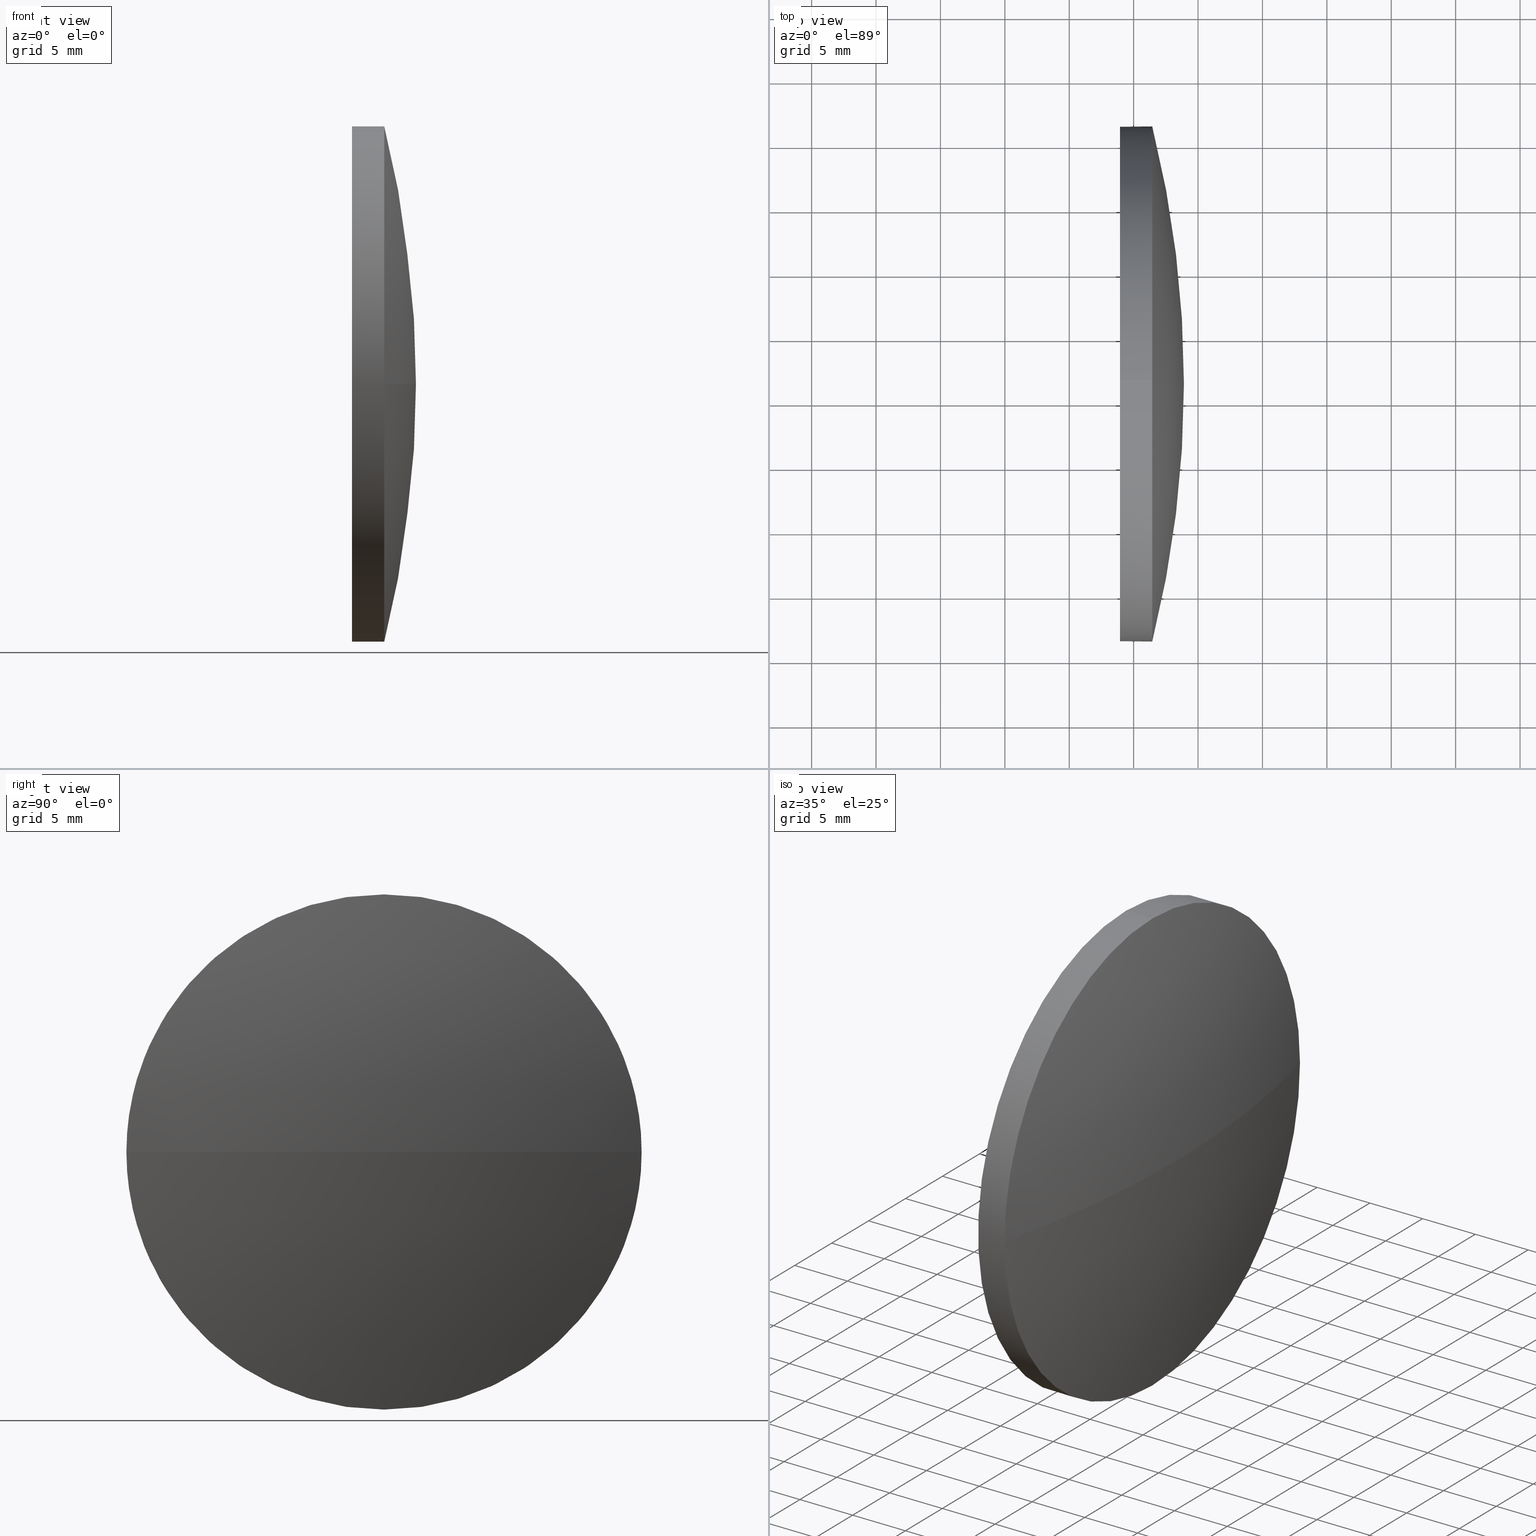
[diagram: canonical four-view strip — front | top / right | iso, engineering-drawing reading convention]
A machine part, canonical four-view strip (front | top / right | iso — engineering-drawing reading convention). The complete STEP part file that produces these views, byte-faithful:
ISO-10303-21;
HEADER;
FILE_DESCRIPTION (( 'STEP AP214' ),
    '1' );
FILE_NAME ('100146.STEP',
    '2019-05-31T03:03:50',
    ( '' ),
    ( '' ),
    'SwSTEP 2.0',
    'SolidWorks 2016',
    '' );
FILE_SCHEMA (( 'AUTOMOTIVE_DESIGN' ));
ENDSEC;

DATA;
#1 = DIRECTION ( 'NONE',  ( 0.0000000000000000000, 0.0000000000000000000, 1.000000000000000000 ) ) ;
#2 = VERTEX_POINT ( 'NONE', #88 ) ;
#3 = EDGE_CURVE ( 'NONE', #113, #154, #10, .T. ) ;
#4 = DIRECTION ( 'NONE',  ( 0.0000000000000000000, 0.0000000000000000000, -1.000000000000000000 ) ) ;
#5 = MANIFOLD_SOLID_BREP ( '��ת1', #33 ) ;
#6 = DIRECTION ( 'NONE',  ( -0.0000000000000000000, 0.0000000000000000000, 1.000000000000000000 ) ) ;
#7 = AXIS2_PLACEMENT_3D ( 'NONE', #15, #17, #92 ) ;
#8 = EDGE_CURVE ( 'NONE', #2, #154, #156, .T. ) ;
#9 = APPLICATION_PROTOCOL_DEFINITION ( 'draft international standard', 'automotive_design', 1998, #81 ) ;
#10 = CIRCLE ( 'NONE', #125, 20.00000000000000400 ) ;
#11 = SURFACE_SIDE_STYLE ('',( #121 ) ) ;
#12 = PRODUCT_RELATED_PRODUCT_CATEGORY ( 'part', '', ( #80 ) ) ;
#13 = ORIENTED_EDGE ( 'NONE', *, *, #8, .F. ) ;
#14 = SURFACE_SIDE_STYLE ('',( #90 ) ) ;
#15 = CARTESIAN_POINT ( 'NONE',  ( 644.2502178065157100, 6.345979496323138800, 0.0000000000000000000 ) ) ;
#16 = VECTOR ( 'NONE', #131, 1000.000000000000000 ) ;
#17 = DIRECTION ( 'NONE',  ( -1.000000000000000000, -0.0000000000000000000, -0.0000000000000000000 ) ) ;
#18 = DIRECTION ( 'NONE',  ( -1.000000000000000000, -0.0000000000000000000, -0.0000000000000000000 ) ) ;
#19 = EDGE_CURVE ( 'NONE', #103, #24, #116, .T. ) ;
#20 = FILL_AREA_STYLE_COLOUR ( '', #157 ) ;
#21 = ORIENTED_EDGE ( 'NONE', *, *, #44, .T. ) ;
#22 = DIRECTION ( 'NONE',  ( -1.000000000000000000, -0.0000000000000000000, -0.0000000000000000000 ) ) ;
#23 = ADVANCED_FACE ( 'NONE', ( #62 ), #67, .T. ) ;
#24 = VERTEX_POINT ( 'NONE', #118 ) ;
#25 = APPLICATION_CONTEXT ( 'automotive_design' ) ;
#26 = CIRCLE ( 'NONE', #179, 82.53081300813025200 ) ;
#27 = ORIENTED_EDGE ( 'NONE', *, *, #73, .T. ) ;
#28 = CIRCLE ( 'NONE', #94, 20.00000000000000400 ) ;
#29 = SURFACE_STYLE_USAGE ( .BOTH. , #14 ) ;
#30 = CARTESIAN_POINT ( 'NONE',  ( 651.4447609870927600, -13.65402050367691300, -2.449293598294710900E-015 ) ) ;
#31 = UNCERTAINTY_MEASURE_WITH_UNIT (LENGTH_MEASURE( 1.000000000000000100E-005 ), #123, 'distance_accuracy_value', 'NONE');
#32 = DIRECTION ( 'NONE',  ( 1.000000000000000000, 0.0000000000000000000, 0.0000000000000000000 ) ) ;
#33 = CLOSED_SHELL ( 'NONE', ( #167, #162, #38, #23, #126 ) ) ;
#34 = DIRECTION ( 'NONE',  ( 0.0000000000000000000, 0.0000000000000000000, 1.000000000000000000 ) ) ;
#35 =( LENGTH_UNIT ( ) NAMED_UNIT ( * ) SI_UNIT ( .MILLI., .METRE. ) );
#36 = ORIENTED_EDGE ( 'NONE', *, *, #73, .F. ) ;
#37 = EDGE_LOOP ( 'NONE', ( #21, #181 ) ) ;
#38 = ADVANCED_FACE ( 'NONE', ( #39 ), #165, .T. ) ;
#39 = FACE_OUTER_BOUND ( 'NONE', #110, .T. ) ;
#40 = AXIS2_PLACEMENT_3D ( 'NONE', #152, #186, #105 ) ;
#41 = CARTESIAN_POINT ( 'NONE',  ( 644.2502178065157100, 6.345979496323141500, -20.00000000000000400 ) ) ;
#42 = EDGE_CURVE ( 'NONE', #113, #124, #145, .T. ) ;
#43 = DIRECTION ( 'NONE',  ( 0.0000000000000000000, 0.0000000000000000000, 1.000000000000000000 ) ) ;
#44 = EDGE_CURVE ( 'NONE', #124, #24, #48, .T. ) ;
#45 = ORIENTED_EDGE ( 'NONE', *, *, #112, .F. ) ;
#46 = DIRECTION ( 'NONE',  ( 0.0000000000000000000, 1.000000000000000000, 0.0000000000000000000 ) ) ;
#47 =( GEOMETRIC_REPRESENTATION_CONTEXT ( 3 ) GLOBAL_UNCERTAINTY_ASSIGNED_CONTEXT ( ( #144 ) ) GLOBAL_UNIT_ASSIGNED_CONTEXT ( ( #35, #66, #109 ) ) REPRESENTATION_CONTEXT ( 'NONE', 'WORKASPACE' ) );
#48 = CIRCLE ( 'NONE', #141, 20.00000000000000400 ) ;
#49 = ORIENTED_EDGE ( 'NONE', *, *, #52, .F. ) ;
#50 = PRESENTATION_STYLE_ASSIGNMENT (( #29 ) ) ;
#51 = ORIENTED_EDGE ( 'NONE', *, *, #44, .F. ) ;
#52 = EDGE_CURVE ( 'NONE', #142, #113, #28, .T. ) ;
#53 = CARTESIAN_POINT ( 'NONE',  ( 571.3739479789625200, 6.345979496323131700, 0.0000000000000000000 ) ) ;
#54 = CYLINDRICAL_SURFACE ( 'NONE', #130, 20.00000000000000400 ) ;
#55 = AXIS2_PLACEMENT_3D ( 'NONE', #136, #96, #180 ) ;
#56 = FILL_AREA_STYLE ('',( #100 ) ) ;
#57 = ORIENTED_EDGE ( 'NONE', *, *, #112, .T. ) ;
#58 = DIRECTION ( 'NONE',  ( -1.000000000000000000, -0.0000000000000000000, -0.0000000000000000000 ) ) ;
#59 = CARTESIAN_POINT ( 'NONE',  ( 571.3739479789625200, 6.345979496323131700, 0.0000000000000000000 ) ) ;
#60 = AXIS2_PLACEMENT_3D ( 'NONE', #151, #174, #46 ) ;
#61 = CARTESIAN_POINT ( 'NONE',  ( 644.2502178065157100, 6.345979496323138800, 0.0000000000000000000 ) ) ;
#62 = FACE_OUTER_BOUND ( 'NONE', #86, .T. ) ;
#63 = CARTESIAN_POINT ( 'NONE',  ( 651.4447609870927600, 6.345979496323138800, 20.00000000000000400 ) ) ;
#64 = ORIENTED_EDGE ( 'NONE', *, *, #19, .F. ) ;
#65 = EDGE_CURVE ( 'NONE', #2, #142, #26, .T. ) ;
#66 =( NAMED_UNIT ( * ) PLANE_ANGLE_UNIT ( ) SI_UNIT ( $, .RADIAN. ) );
#67 = CYLINDRICAL_SURFACE ( 'NONE', #7, 20.00000000000000400 ) ;
#68 = AXIS2_PLACEMENT_3D ( 'NONE', #175, #22, #34 ) ;
#69 = EDGE_LOOP ( 'NONE', ( #27, #129, #51, #76, #170 ) ) ;
#70 = STYLED_ITEM ( 'NONE', ( #85 ), #111 ) ;
#71 = ORIENTED_EDGE ( 'NONE', *, *, #104, .F. ) ;
#72 =( NAMED_UNIT ( * ) PLANE_ANGLE_UNIT ( ) SI_UNIT ( $, .RADIAN. ) );
#73 = EDGE_CURVE ( 'NONE', #154, #103, #97, .T. ) ;
#74 = ORIENTED_EDGE ( 'NONE', *, *, #42, .T. ) ;
#75 = CARTESIAN_POINT ( 'NONE',  ( 651.4447609870927600, 6.345979496323141500, -20.00000000000000400 ) ) ;
#76 = ORIENTED_EDGE ( 'NONE', *, *, #42, .F. ) ;
#77 = DIRECTION ( 'NONE',  ( -1.000000000000000000, -0.0000000000000000000, -0.0000000000000000000 ) ) ;
#78 = AXIS2_PLACEMENT_3D ( 'NONE', #176, #32, #4 ) ;
#79 = CIRCLE ( 'NONE', #98, 20.00000000000000400 ) ;
#80 = PRODUCT ( '100146', '100146', '', ( #108 ) ) ;
#81 = APPLICATION_CONTEXT ( 'automotive_design' ) ;
#82 = COLOUR_RGB ( '',1.000000000000000000, 1.000000000000000000, 1.000000000000000000 ) ;
#83 =( NAMED_UNIT ( * ) SI_UNIT ( $, .STERADIAN. ) SOLID_ANGLE_UNIT ( ) );
#84 = PRESENTATION_LAYER_ASSIGNMENT (  '', '', ( #70 ) ) ;
#85 = PRESENTATION_STYLE_ASSIGNMENT (( #153 ) ) ;
#86 = EDGE_LOOP ( 'NONE', ( #64, #57, #135, #74, #71 ) ) ;
#87 = MECHANICAL_DESIGN_GEOMETRIC_PRESENTATION_REPRESENTATION (  '', ( #70 ), #178 ) ;
#88 = CARTESIAN_POINT ( 'NONE',  ( 653.9047609870928000, 6.345979496323137100, 0.0000000000000000000 ) ) ;
#89 = DIRECTION ( 'NONE',  ( 0.0000000000000000000, 1.000000000000000000, 0.0000000000000000000 ) ) ;
#90 = SURFACE_STYLE_FILL_AREA ( #56 ) ;
#91 = DIRECTION ( 'NONE',  ( -0.0000000000000000000, 0.0000000000000000000, -1.000000000000000000 ) ) ;
#92 = DIRECTION ( 'NONE',  ( 0.0000000000000000000, 0.0000000000000000000, 1.000000000000000000 ) ) ;
#93 = FACE_OUTER_BOUND ( 'NONE', #182, .T. ) ;
#94 = AXIS2_PLACEMENT_3D ( 'NONE', #149, #139, #160 ) ;
#95 = MECHANICAL_DESIGN_GEOMETRIC_PRESENTATION_REPRESENTATION (  '', ( #137 ), #122 ) ;
#96 = DIRECTION ( 'NONE',  ( 0.0000000000000000000, 0.0000000000000000000, 1.000000000000000000 ) ) ;
#97 = CIRCLE ( 'NONE', #40, 20.00000000000000400 ) ;
#98 = AXIS2_PLACEMENT_3D ( 'NONE', #117, #18, #43 ) ;
#99 = SPHERICAL_SURFACE ( 'NONE', #60, 82.53081300813025200 ) ;
#100 = FILL_AREA_STYLE_COLOUR ( '', #82 ) ;
#101 = DIRECTION ( 'NONE',  ( 0.0000000000000000000, 0.0000000000000000000, 1.000000000000000000 ) ) ;
#102 = DIRECTION ( 'NONE',  ( 0.0000000000000000000, 1.000000000000000000, 1.224646799147353200E-016 ) ) ;
#103 = VERTEX_POINT ( 'NONE', #75 ) ;
#104 = EDGE_CURVE ( 'NONE', #24, #124, #140, .T. ) ;
#105 = DIRECTION ( 'NONE',  ( 0.0000000000000000000, 0.0000000000000000000, 1.000000000000000000 ) ) ;
#106 = CARTESIAN_POINT ( 'NONE',  ( 648.9447609870927600, 6.345979496323138800, 20.00000000000000400 ) ) ;
#107 = ORIENTED_EDGE ( 'NONE', *, *, #8, .T. ) ;
#108 = PRODUCT_CONTEXT ( 'NONE', #81, 'mechanical' ) ;
#109 =( NAMED_UNIT ( * ) SI_UNIT ( $, .STERADIAN. ) SOLID_ANGLE_UNIT ( ) );
#110 = EDGE_LOOP ( 'NONE', ( #147, #107, #161, #49 ) ) ;
#111 = ADVANCED_BREP_SHAPE_REPRESENTATION ( '100146', ( #5, #55 ), #47 ) ;
#112 = EDGE_CURVE ( 'NONE', #103, #142, #79, .T. ) ;
#113 = VERTEX_POINT ( 'NONE', #63 ) ;
#114 =( NAMED_UNIT ( * ) SI_UNIT ( $, .STERADIAN. ) SOLID_ANGLE_UNIT ( ) );
#115 = DIRECTION ( 'NONE',  ( -1.000000000000000000, -0.0000000000000000000, -0.0000000000000000000 ) ) ;
#116 = LINE ( 'NONE', #41, #16 ) ;
#117 = CARTESIAN_POINT ( 'NONE',  ( 651.4447609870927600, 6.345979496323138800, 0.0000000000000000000 ) ) ;
#118 = CARTESIAN_POINT ( 'NONE',  ( 648.9447609870927600, 6.345979496323141500, -20.00000000000000400 ) ) ;
#119 = PRODUCT_DEFINITION_FORMATION_WITH_SPECIFIED_SOURCE ( '�κ�', '', #80, .NOT_KNOWN. ) ;
#120 = CARTESIAN_POINT ( 'NONE',  ( 571.3739479789625200, 6.345979496323131700, 0.0000000000000000000 ) ) ;
#121 = SURFACE_STYLE_FILL_AREA ( #127 ) ;
#122 =( GEOMETRIC_REPRESENTATION_CONTEXT ( 3 ) GLOBAL_UNCERTAINTY_ASSIGNED_CONTEXT ( ( #148 ) ) GLOBAL_UNIT_ASSIGNED_CONTEXT ( ( #158, #72, #114 ) ) REPRESENTATION_CONTEXT ( 'NONE', 'WORKASPACE' ) );
#123 =( LENGTH_UNIT ( ) NAMED_UNIT ( * ) SI_UNIT ( .MILLI., .METRE. ) );
#124 = VERTEX_POINT ( 'NONE', #106 ) ;
#125 = AXIS2_PLACEMENT_3D ( 'NONE', #172, #115, #101 ) ;
#126 = ADVANCED_FACE ( 'NONE', ( #171 ), #134, .F. ) ;
#127 = FILL_AREA_STYLE ('',( #20 ) ) ;
#128 = PRESENTATION_LAYER_ASSIGNMENT (  '', '', ( #137 ) ) ;
#129 = ORIENTED_EDGE ( 'NONE', *, *, #19, .T. ) ;
#130 = AXIS2_PLACEMENT_3D ( 'NONE', #61, #77, #177 ) ;
#131 = DIRECTION ( 'NONE',  ( -1.000000000000000000, -0.0000000000000000000, -0.0000000000000000000 ) ) ;
#132 = FACE_OUTER_BOUND ( 'NONE', #69, .T. ) ;
#133 = PRODUCT_DEFINITION_SHAPE ( 'NONE', 'NONE',  #168 ) ;
#134 = PLANE ( 'NONE',  #78 ) ;
#135 = ORIENTED_EDGE ( 'NONE', *, *, #52, .T. ) ;
#136 = CARTESIAN_POINT ( 'NONE',  ( 0.0000000000000000000, 0.0000000000000000000, 0.0000000000000000000 ) ) ;
#137 = STYLED_ITEM ( 'NONE', ( #50 ), #5 ) ;
#138 = DIRECTION ( 'NONE',  ( 0.0000000000000000000, 1.224646799147353200E-016, -1.000000000000000000 ) ) ;
#139 = DIRECTION ( 'NONE',  ( -1.000000000000000000, -0.0000000000000000000, -0.0000000000000000000 ) ) ;
#140 = CIRCLE ( 'NONE', #68, 20.00000000000000400 ) ;
#141 = AXIS2_PLACEMENT_3D ( 'NONE', #150, #58, #1 ) ;
#142 = VERTEX_POINT ( 'NONE', #30 ) ;
#143 = APPLICATION_PROTOCOL_DEFINITION ( 'draft international standard', 'automotive_design', 1998, #25 ) ;
#144 = UNCERTAINTY_MEASURE_WITH_UNIT (LENGTH_MEASURE( 1.000000000000000100E-005 ), #35, 'distance_accuracy_value', 'NONE');
#145 = LINE ( 'NONE', #173, #169 ) ;
#146 = AXIS2_PLACEMENT_3D ( 'NONE', #53, #6, #163 ) ;
#147 = ORIENTED_EDGE ( 'NONE', *, *, #65, .F. ) ;
#148 = UNCERTAINTY_MEASURE_WITH_UNIT (LENGTH_MEASURE( 1.000000000000000100E-005 ), #158, 'distance_accuracy_value', 'NONE');
#149 = CARTESIAN_POINT ( 'NONE',  ( 651.4447609870927600, 6.345979496323138800, 0.0000000000000000000 ) ) ;
#150 = CARTESIAN_POINT ( 'NONE',  ( 648.9447609870927600, 6.345979496323138800, 0.0000000000000000000 ) ) ;
#151 = CARTESIAN_POINT ( 'NONE',  ( 571.3739479789625200, 6.345979496323131700, 0.0000000000000000000 ) ) ;
#152 = CARTESIAN_POINT ( 'NONE',  ( 651.4447609870927600, 6.345979496323138800, 0.0000000000000000000 ) ) ;
#153 = SURFACE_STYLE_USAGE ( .BOTH. , #11 ) ;
#154 = VERTEX_POINT ( 'NONE', #159 ) ;
#155 = AXIS2_PLACEMENT_3D ( 'NONE', #59, #91, #89 ) ;
#156 = CIRCLE ( 'NONE', #146, 82.53081300813025200 ) ;
#157 = COLOUR_RGB ( '',1.000000000000000000, 1.000000000000000000, 1.000000000000000000 ) ;
#158 =( LENGTH_UNIT ( ) NAMED_UNIT ( * ) SI_UNIT ( .MILLI., .METRE. ) );
#159 = CARTESIAN_POINT ( 'NONE',  ( 651.4447609870927600, 26.34597949632318100, 0.0000000000000000000 ) ) ;
#160 = DIRECTION ( 'NONE',  ( 0.0000000000000000000, 0.0000000000000000000, 1.000000000000000000 ) ) ;
#161 = ORIENTED_EDGE ( 'NONE', *, *, #3, .F. ) ;
#162 = ADVANCED_FACE ( 'NONE', ( #93 ), #99, .T. ) ;
#163 = DIRECTION ( 'NONE',  ( 1.000000000000000000, 0.0000000000000000000, 0.0000000000000000000 ) ) ;
#164 = DIRECTION ( 'NONE',  ( -1.000000000000000000, -0.0000000000000000000, -0.0000000000000000000 ) ) ;
#165 = SPHERICAL_SURFACE ( 'NONE', #155, 82.53081300813025200 ) ;
#166 =( NAMED_UNIT ( * ) PLANE_ANGLE_UNIT ( ) SI_UNIT ( $, .RADIAN. ) );
#167 = ADVANCED_FACE ( 'NONE', ( #132 ), #54, .T. ) ;
#168 = PRODUCT_DEFINITION ( 'δ֪', '', #119, #185 ) ;
#169 = VECTOR ( 'NONE', #164, 1000.000000000000000 ) ;
#170 = ORIENTED_EDGE ( 'NONE', *, *, #3, .T. ) ;
#171 = FACE_OUTER_BOUND ( 'NONE', #37, .T. ) ;
#172 = CARTESIAN_POINT ( 'NONE',  ( 651.4447609870927600, 6.345979496323138800, 0.0000000000000000000 ) ) ;
#173 = CARTESIAN_POINT ( 'NONE',  ( 644.2502178065157100, 6.345979496323138800, 20.00000000000000400 ) ) ;
#174 = DIRECTION ( 'NONE',  ( -0.0000000000000000000, 0.0000000000000000000, -1.000000000000000000 ) ) ;
#175 = CARTESIAN_POINT ( 'NONE',  ( 648.9447609870927600, 6.345979496323138800, 0.0000000000000000000 ) ) ;
#176 = CARTESIAN_POINT ( 'NONE',  ( 648.9447609870927600, 6.345979496323138800, 0.0000000000000000000 ) ) ;
#177 = DIRECTION ( 'NONE',  ( 0.0000000000000000000, 0.0000000000000000000, 1.000000000000000000 ) ) ;
#178 =( GEOMETRIC_REPRESENTATION_CONTEXT ( 3 ) GLOBAL_UNCERTAINTY_ASSIGNED_CONTEXT ( ( #31 ) ) GLOBAL_UNIT_ASSIGNED_CONTEXT ( ( #123, #166, #83 ) ) REPRESENTATION_CONTEXT ( 'NONE', 'WORKASPACE' ) );
#179 = AXIS2_PLACEMENT_3D ( 'NONE', #120, #138, #102 ) ;
#180 = DIRECTION ( 'NONE',  ( 1.000000000000000000, 0.0000000000000000000, 0.0000000000000000000 ) ) ;
#181 = ORIENTED_EDGE ( 'NONE', *, *, #104, .T. ) ;
#182 = EDGE_LOOP ( 'NONE', ( #13, #183, #45, #36 ) ) ;
#183 = ORIENTED_EDGE ( 'NONE', *, *, #65, .T. ) ;
#184 = SHAPE_DEFINITION_REPRESENTATION ( #133, #111 ) ;
#185 = PRODUCT_DEFINITION_CONTEXT ( 'detailed design', #25, 'design' ) ;
#186 = DIRECTION ( 'NONE',  ( -1.000000000000000000, -0.0000000000000000000, -0.0000000000000000000 ) ) ;
ENDSEC;
END-ISO-10303-21;
